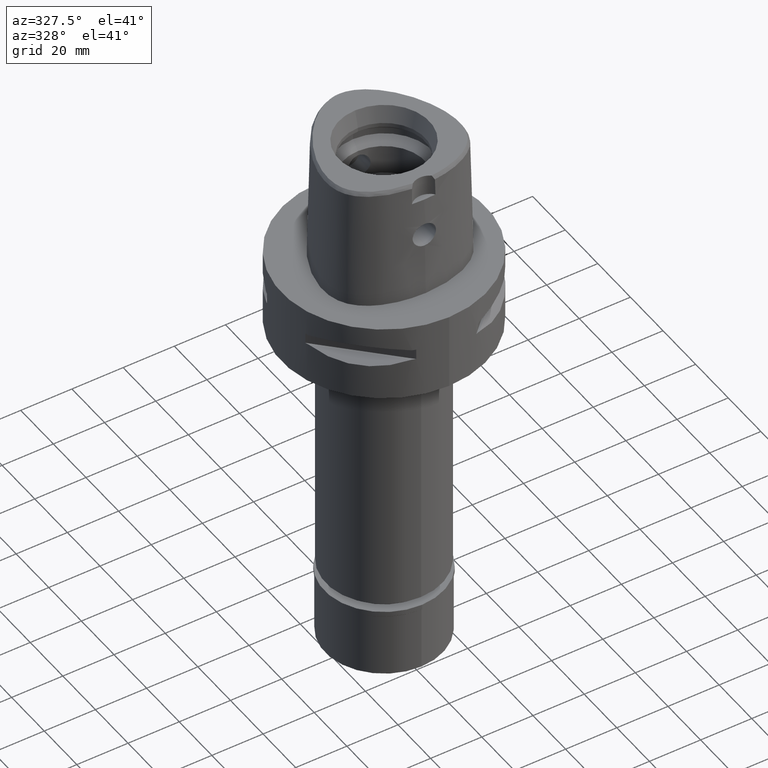
[diagram: clean part render]
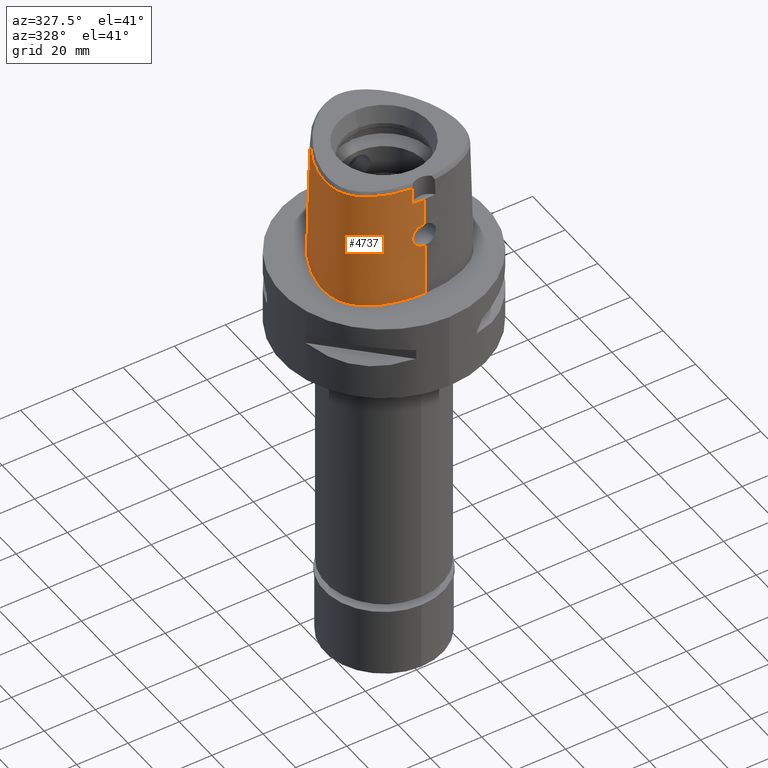
[diagram: same view with one face highlighted and labeled with its STEP entity id]
A machine part, auxiliary view. The second image highlights one B-rep face of the part: STEP entity #4737.
In plain terms, the highlighted face is a freeform B-spline surface patch.
Its self-contained STEP definition (entity closure, byte-faithful):
#7 = DIRECTION ( 'NONE',  ( -5.053220550043809941E-13, -0.02499051295420905497, -0.9996876883618630583 ) ) ;
#8 = CARTESIAN_POINT ( 'NONE',  ( 0.5689259951226000034, -25.59577895909999867, -0.9304144766363000585 ) ) ;
#18 = CARTESIAN_POINT ( 'NONE',  ( -0.2769662722958331491, -24.83629963747999980, 29.55000000000000071 ) ) ;
#28 = CARTESIAN_POINT ( 'NONE',  ( -1.049694959834582830, 29.57500002245776471, -8.981630610148221006E-07 ) ) ;
#53 = B_SPLINE_CURVE_WITH_KNOTS ( 'NONE', 3,
 ( #510, #28, #3998, #2778, #411, #1993, #4355, #4821, #3214, #3950, #4427, #4337, #4846, #1628, #833, #2851, #2827, #3168, #3972, #435, #2044, #2021, #4020, #457, #4380 ),
 .UNSPECIFIED., .F., .F.,
 ( 4, 1, 1, 1, 1, 1, 1, 1, 1, 1, 1, 1, 1, 1, 1, 1, 1, 1, 1, 1, 1, 1, 4 ),
 ( 0.0000000000000000000, 0.04166666666704999661, 0.08333333333368000972, 0.1250000000003000100, 0.1666666666670000019, 0.2500000000002000067, 0.3333333333335000148, 0.4166666666668000230, 0.4583333333333999837, 0.5000000000001000311, 0.5416666666667000474, 0.5833333333333000637, 0.6250000000000000000, 0.6458333333333000637, 0.6666666666667000474, 0.6874999999999000799, 0.7083333333332000326, 0.7499999999999000799, 0.7916666666666000163, 0.8333333333331000015, 0.8749999999998000488, 0.9166666666664999852, 1.000000000000000000 ),
 .UNSPECIFIED. ) ;
#95 = CARTESIAN_POINT ( 'NONE',  ( -4.201380620709784353, -24.72153596869750913, 26.74670933509911563 ) ) ;
#124 = CARTESIAN_POINT ( 'NONE',  ( -3.900686180413630577, -24.73222278675433472, 27.34720371155059837 ) ) ;
#145 = CARTESIAN_POINT ( 'NONE',  ( -4.219931661120497779, -24.80642684597901848, 23.29859562715307675 ) ) ;
#165 = FACE_OUTER_BOUND ( 'NONE', #1194, .T. ) ;
#169 = CARTESIAN_POINT ( 'NONE',  ( -4.549921019084919749, -24.74001865967037972, 24.72536366591872437 ) ) ;
#192 = CARTESIAN_POINT ( 'NONE',  ( -27.70696775902000297, -8.754869100832999962, -0.9304144766363000585 ) ) ;
#198 = CARTESIAN_POINT ( 'NONE',  ( -1.703896036126127278, -24.81434470502067668, 29.21892603896870710 ) ) ;
#214 = CARTESIAN_POINT ( 'NONE',  ( -27.12297207980999758, -11.41745865540999993, -0.9304144766363000585 ) ) ;
#241 = CARTESIAN_POINT ( 'NONE',  ( 0.5902542487144000205, 29.18556700418999839, 15.19676978505999898 ) ) ;
#264 = CARTESIAN_POINT ( 'NONE',  ( -5.572548441001297981, -24.09475885057384303, 46.52070903171008354 ) ) ;
#268 = CARTESIAN_POINT ( 'NONE',  ( -24.10679984010999632, 6.379205541131000246, 47.45113830844999825 ) ) ;
#273 = CARTESIAN_POINT ( 'NONE',  ( -2.224291573382352727, -24.99814500580220766, 21.02832322412745825 ) ) ;
#292 = B_SPLINE_CURVE_WITH_KNOTS ( 'NONE', 3,
 ( #4287, #2311, #313, #1881 ),
 .UNSPECIFIED., .F., .F.,
 ( 4, 4 ),
 ( 0.0000000000000000000, 1.000000000000000000 ),
 .UNSPECIFIED. ) ;
#301 = CARTESIAN_POINT ( 'NONE',  ( -3.702709904148339781, -24.87336589807970100, 22.35148037005131272 ) ) ;
#313 = CARTESIAN_POINT ( 'NONE',  ( -3.083107012282212178, -24.50056602082081270, 40.00000010711481480 ) ) ;
#324 = CARTESIAN_POINT ( 'NONE',  ( -3.790579096131103665, -24.86307050843588229, 22.48323682071577423 ) ) ;
#374 = CARTESIAN_POINT ( 'NONE',  ( -18.17462485540999850, -20.76404278096999789, 31.32395404676000084 ) ) ;
#397 = CARTESIAN_POINT ( 'NONE',  ( -11.74634101483999871, -24.15815461093999872, -0.9304144766363000585 ) ) ;
#411 = CARTESIAN_POINT ( 'NONE',  ( -9.304563418361519567, 26.79191408171391231, -8.981630610148221006E-07 ) ) ;
#435 = CARTESIAN_POINT ( 'NONE',  ( -18.55019650159792377, -21.45394533227971579, -8.981630610148221006E-07 ) ) ;
#440 = VERTEX_POINT ( 'NONE', #1156 ) ;
#457 = CARTESIAN_POINT ( 'NONE',  ( -2.676740186769421825, -25.57500002245401660, -8.981630610148221006E-07 ) ) ;
#478 = CARTESIAN_POINT ( 'NONE',  ( -3.211065830876445037, -24.76179211193618457, 28.22361125334742482 ) ) ;
#488 = ORIENTED_EDGE ( 'NONE', *, *, #2544, .F. ) ;
#507 = CARTESIAN_POINT ( 'NONE',  ( -4.098396066246055902, -24.72479182399337461, 26.97739233805751269 ) ) ;
#510 = CARTESIAN_POINT ( 'NONE',  ( 3.071360863650999976E-11, 29.57499999998999840, 4.999704354228999432E-14 ) ) ;
#532 = CARTESIAN_POINT ( 'NONE',  ( -4.547910621292748701, -24.72974527037225911, 25.14250056299538727 ) ) ;
#537 = VERTEX_POINT ( 'NONE', #594 ) ;
#554 = CARTESIAN_POINT ( 'NONE',  ( -3.994669282579361269, -24.83794919743792562, 22.82040209576821610 ) ) ;
#578 = CARTESIAN_POINT ( 'NONE',  ( -22.00846693109999919, 12.70659196839000060, 15.19676978505999898 ) ) ;
#585 = CARTESIAN_POINT ( 'NONE',  ( -4.183313010706772417, -24.72206008749300921, 26.78965014441195791 ) ) ;
#594 = CARTESIAN_POINT ( 'NONE',  ( -4.472216406693000579, -24.20008985674000357, 46.52070903171000538 ) ) ;
#604 = CARTESIAN_POINT ( 'NONE',  ( -26.52477687770683090, -8.605158286269631418, 46.52070903171008354 ) ) ;
#607 = CARTESIAN_POINT ( 'NONE',  ( -26.90338677860000161, -8.653104855271999796, 31.32395404676000084 ) ) ;
#633 = CARTESIAN_POINT ( 'NONE',  ( -12.44957317646415440, 23.16260189109142331, 46.52070903171008354 ) ) ;
#635 = CARTESIAN_POINT ( 'NONE',  ( -26.34453533486999888, -11.19579297653000083, 31.32395404676000084 ) ) ;
#660 = CARTESIAN_POINT ( 'NONE',  ( -17.45811262699000110, 19.27961880698999764, 15.19676978505999898 ) ) ;
#677 = EDGE_CURVE ( 'NONE', #1505, #4433, #53, .T. ) ;
#693 = CARTESIAN_POINT ( 'NONE',  ( -26.79474625773000085, 1.906447387331000165, -0.9304144766363000585 ) ) ;
#698 = CARTESIAN_POINT ( 'NONE',  ( -1.843442154715413395, -25.01881181296652912, 20.83994273181284385 ) ) ;
#719 = CARTESIAN_POINT ( 'NONE',  ( -24.14246365678000217, -15.65707285802999849, 31.32395404676000084 ) ) ;
#723 = CARTESIAN_POINT ( 'NONE',  ( -1.467048192861000018E-12, -25.06378435148999984, 20.44999999999999929 ) ) ;
#769 = CARTESIAN_POINT ( 'NONE',  ( -11.64093424006999911, -23.76831843806999700, 15.19676978505999898 ) ) ;
#796 = CARTESIAN_POINT ( 'NONE',  ( -17.98126124112999946, -20.40884543800000017, 47.45113830844999825 ) ) ;
#801 = CARTESIAN_POINT ( 'NONE',  ( -4.849489465481114265E-09, -24.66214466420069229, 36.51666702990934255 ) ) ;
#827 = CARTESIAN_POINT ( 'NONE',  ( -1.611811031578107345, -24.81663505490543642, 29.25526689574285299 ) ) ;
#833 = CARTESIAN_POINT ( 'NONE',  ( -26.34912739279852190, -13.39455079027902329, -8.981630610148221006E-07 ) ) ;
#907 = CARTESIAN_POINT ( 'NONE',  ( -4.068466760403409488, -24.72584630863870103, 27.03834969239067121 ) ) ;
#931 = CARTESIAN_POINT ( 'NONE',  ( -1.180411260321999901E-11, -25.57499999999999929, 5.639932965095998436E-14 ) ) ;
#936 = CARTESIAN_POINT ( 'NONE',  ( -4.441732659387183979, -24.76864030037668840, 24.00221451032574294 ) ) ;
#966 = CARTESIAN_POINT ( 'NONE',  ( -3.125212091967373595, -24.76551320166747416, 28.30726214217308723 ) ) ;
#985 = CARTESIAN_POINT ( 'NONE',  ( -21.65785138451999714, 12.50416150627000000, 31.32395404676000084 ) ) ;
#990 = CARTESIAN_POINT ( 'NONE',  ( -2.404910036721157773, -24.79321437770949998, 28.86288751850016610 ) ) ;
#1009 = CARTESIAN_POINT ( 'NONE',  ( -25.97777222568481648, -11.09135444107796786, 46.52070903171008354 ) ) ;
#1011 = CARTESIAN_POINT ( 'NONE',  ( 0.5552374614105000106, 28.37983258526000085, 47.45113830844999825 ) ) ;
#1016 = CARTESIAN_POINT ( 'NONE',  ( -2.249867388139984214, -24.79844751147312465, 28.95562542824798058 ) ) ;
#1037 = CARTESIAN_POINT ( 'NONE',  ( -8.894849814684999245, 26.12169678474999657, 31.32395404676000084 ) ) ;
#1060 = B_SPLINE_CURVE_WITH_KNOTS ( 'NONE', 3,
 ( #2445, #801, #4422, #3536 ),
 .UNSPECIFIED., .F., .F.,
 ( 4, 4 ),
 ( 0.0000000000000000000, 1.000000000000000000 ),
 .UNSPECIFIED. ) ;
#1064 = CARTESIAN_POINT ( 'NONE',  ( -26.76156705728999796, -1.884109319980999953, 31.32395404676000084 ) ) ;
#1071 = CARTESIAN_POINT ( 'NONE',  ( -3.472208232089663671, -24.89783358727838447, 22.05860165752378776 ) ) ;
#1091 = CARTESIAN_POINT ( 'NONE',  ( -17.99241701171357022, -20.42933791837082325, 46.52070903171008354 ) ) ;
#1093 = CARTESIAN_POINT ( 'NONE',  ( -3.154109046503999814, 29.36302093374000322, -0.9304144766363000585 ) ) ;
#1118 = CARTESIAN_POINT ( 'NONE',  ( -14.87405714085419639, -21.87944447072877097, 46.52070903171008354 ) ) ;
#1149 = CARTESIAN_POINT ( 'NONE',  ( -2.354156828678999780, -24.81494221494999763, 31.32395404676000084 ) ) ;
#1156 = CARTESIAN_POINT ( 'NONE',  ( -1.344666072917000002E-11, 28.41206021534999593, 46.52071719450999154 ) ) ;
#1174 = CARTESIAN_POINT ( 'NONE',  ( -6.584202217011000613, -24.46732447774000008, 31.32395404676000084 ) ) ;
#1186 = EDGE_CURVE ( 'NONE', #5031, #1966, #1060, .T. ) ;
#1194 = EDGE_LOOP ( 'NONE', ( #2515, #1350, #2958, #3479, #488, #3544, #3846, #4684 ) ) ;
#1195 = CARTESIAN_POINT ( 'NONE',  ( -1.344666072917000002E-11, 28.41206021534999593, 46.52071719450999154 ) ) ;
#1201 = CARTESIAN_POINT ( 'NONE',  ( -23.15870205113999702, -17.49879694221999671, 15.19676978505999898 ) ) ;
#1312 = CARTESIAN_POINT ( 'NONE',  ( -1.722296434336842763, -24.81387508079694015, 29.21144792399064016 ) ) ;
#1335 = CARTESIAN_POINT ( 'NONE',  ( -4.494536868534346752, -24.72037511897826789, 25.72370608056143837 ) ) ;
#1350 = ORIENTED_EDGE ( 'NONE', *, *, #1777, .F. ) ;
#1363 = CARTESIAN_POINT ( 'NONE',  ( -4.156037652092123835, -24.81598364112163679, 23.14362525770374646 ) ) ;
#1388 = CARTESIAN_POINT ( 'NONE',  ( -9.105791465975000776, 26.46675914556999842, 15.19676978505999898 ) ) ;
#1392 = CARTESIAN_POINT ( 'NONE',  ( -4.406213798168644225, -24.77565163120073777, 23.85472934568140957 ) ) ;
#1410 = CARTESIAN_POINT ( 'NONE',  ( -12.43420517454000063, 23.14497629918999877, 47.45113830844999825 ) ) ;
#1416 = CARTESIAN_POINT ( 'NONE',  ( -3.808704889424079809, -24.86093372512832289, 22.51074749453151114 ) ) ;
#1433 = CARTESIAN_POINT ( 'NONE',  ( -4.516620139914707011, -24.24973684088320525, 44.34713935447333455 ) ) ;
#1435 = CARTESIAN_POINT ( 'NONE',  ( -0.7475778414347999945, 29.63225228728000005, -0.9304144766363000585 ) ) ;
#1465 = CARTESIAN_POINT ( 'NONE',  ( -6.114741924721999844, 27.99897533564999819, 15.19676978505999898 ) ) ;
#1485 = CARTESIAN_POINT ( 'NONE',  ( -5.810185802762860341, 27.27372406630062329, 46.52070903171008354 ) ) ;
#1488 = CARTESIAN_POINT ( 'NONE',  ( 0.8322161961028999855, 28.36171632456999703, 47.45113830844999825 ) ) ;
#1505 = VERTEX_POINT ( 'NONE', #3743 ) ;
#1511 = CARTESIAN_POINT ( 'NONE',  ( -8.696078067630889308, 25.79654218449118730, 46.52070903171008354 ) ) ;
#1514 = CARTESIAN_POINT ( 'NONE',  ( -22.57751559032999822, -16.93548378770000085, 47.45113830844999825 ) ) ;
#1544 = CARTESIAN_POINT ( 'NONE',  ( -22.86810882073999807, -17.21714036496000233, 31.32395404676000084 ) ) ;
#1568 = CARTESIAN_POINT ( 'NONE',  ( 0.8532670503982000554, -25.59082387529999636, -0.9304144766363000585 ) ) ;
#1611 = CARTESIAN_POINT ( 'NONE',  ( 0.5642418784031000278, -25.19264542664000217, 15.19676978505999898 ) ) ;
#1623 = CARTESIAN_POINT ( 'NONE',  ( -1.003044292487226929, -24.82866638025620887, 29.44055839642895478 ) ) ;
#1628 = CARTESIAN_POINT ( 'NONE',  ( -27.10051719538249770, -11.41106445930717328, -8.981630610148221006E-07 ) ) ;
#1696 = CARTESIAN_POINT ( 'NONE',  ( -3.172181247292561235, -24.76348918694394285, 28.26195868750398077 ) ) ;
#1721 = CARTESIAN_POINT ( 'NONE',  ( -2.352923008986411268, -24.79499099983797450, 28.89459205334612335 ) ) ;
#1731 = B_SPLINE_CURVE_WITH_KNOTS ( 'NONE', 3,
 ( #2370, #18, #4738, #1623, #3162, #2774, #4349, #827, #2113, #198, #1312, #4899, #4530, #2848, #3331, #1016, #1721, #990, #2896, #3260, #2572, #2477, #3236, #4818, #4040, #2547, #966, #1696, #2167, #2063, #478, #3689, #4424, #124, #3607, #907, #507, #3640, #4871, #585, #2526, #4843, #95, #3308, #2088, #1335, #2872, #4119, #3719, #532, #4504, #3284, #169, #4455, #936, #1392, #2505, #4067, #4486, #3665, #145, #1770, #1746, #1363, #4088, #554, #1797, #2139, #2921, #4922, #1416, #2949, #324, #301, #2193, #1071, #3802, #3437, #2273, #3744, #1818, #1868, #5025, #1918, #4638, #273, #2623, #5050, #2649, #698, #3772, #4171, #3408, #3353, #3465, #4191, #723 ),
 .UNSPECIFIED., .F., .F.,
 ( 4, 2, 2, 1, 1, 1, 2, 2, 2, 2, 1, 1, 2, 2, 2, 1, 1, 1, 2, 2, 2, 2, 2, 1, 1, 2, 2, 2, 2, 1, 2, 2, 2, 2, 1, 1, 1, 2, 2, 2, 2, 1, 1, 2, 2, 2, 1, 1, 1, 2, 2, 2, 2, 2, 1, 1, 2, 2, 4 ),
 ( 0.0000000000000000000, 0.06249999999998905043, 0.09374999999998356870, 0.1093749999999808348, 0.1171874999999794748, 0.1210937499999787531, 0.1230468749999785588, 0.1249999999999783507, 0.1562499999999781286, 0.1718749999999779621, 0.1796874999999778511, 0.1835937499999777678, 0.1855468749999779066, 0.1874999999999780176, 0.2187499999999800437, 0.2343749999999812650, 0.2421874999999818201, 0.2460937499999820977, 0.2480468749999824585, 0.2499999999999828471, 0.3125000000000057732, 0.3437500000000175415, 0.3593750000000238143, 0.3671875000000265343, 0.3710937500000279221, 0.3730468750000282552, 0.3750000000000285327, 0.4375000000000252576, 0.4687500000000232592, 0.4843750000000222045, 0.4921875000000220934, 0.5000000000000219824, 0.5625000000000232037, 0.5937500000000235367, 0.6093750000000233147, 0.6171875000000233147, 0.6210937500000229816, 0.6230468750000228706, 0.6250000000000227596, 0.6562500000000179856, 0.6718750000000157652, 0.6796875000000145439, 0.6835937500000139888, 0.6855468750000134337, 0.6875000000000128786, 0.7187500000000042188, 0.7343749999999995559, 0.7421874999999972244, 0.7460937499999960032, 0.7480468749999956701, 0.7499999999999952260, 0.8124999999999943379, 0.8437499999999938938, 0.8593749999999935607, 0.8671874999999934497, 0.8710937499999934497, 0.8730468749999934497, 0.8749999999999934497, 1.000000000000000000 ),
 .UNSPECIFIED. ) ;
#1746 = CARTESIAN_POINT ( 'NONE',  ( -4.207829589086045985, -24.80824686016802261, 23.26889234074807078 ) ) ;
#1766 = CARTESIAN_POINT ( 'NONE',  ( -5.801139433146000002, 27.25218159654000161, 47.45113830844999825 ) ) ;
#1770 = CARTESIAN_POINT ( 'NONE',  ( -4.212409792926581353, -24.80756021599265537, 23.28005703556016925 ) ) ;
#1773 = VECTOR ( 'NONE', #7, 1000.000000000000114 ) ;
#1777 = EDGE_CURVE ( 'NONE', #1966, #2282, #1731, .T. ) ;
#1791 = CARTESIAN_POINT ( 'NONE',  ( -3.067023398624999952, 28.96669974886000176, 15.19676978505999898 ) ) ;
#1797 = CARTESIAN_POINT ( 'NONE',  ( -3.957281473798043514, -24.84276546235786043, 22.75305380327923999 ) ) ;
#1811 = CARTESIAN_POINT ( 'NONE',  ( -16.85032607016413309, 18.77963051275659012, 46.52070903171008354 ) ) ;
#1813 = CARTESIAN_POINT ( 'NONE',  ( -8.683908163395999580, 25.77663442393000182, 47.45113830844999825 ) ) ;
#1818 = CARTESIAN_POINT ( 'NONE',  ( -3.232655617673357185, -24.92130312931369218, 21.79804365392788768 ) ) ;
#1837 = CARTESIAN_POINT ( 'NONE',  ( -22.59428085107287743, -16.95173346409835347, 46.52070903171008354 ) ) ;
#1840 = CARTESIAN_POINT ( 'NONE',  ( -0.7257524945023999807, 29.22811259648999993, 15.19676978505999898 ) ) ;
#1864 = CARTESIAN_POINT ( 'NONE',  ( -9.316733117264998754, 26.81182150639000028, -0.9304144766363000585 ) ) ;
#1868 = CARTESIAN_POINT ( 'NONE',  ( -3.227056402119971690, -24.92183285210593269, 21.79239637393090590 ) ) ;
#1881 = CARTESIAN_POINT ( 'NONE',  ( -4.602965878455999693, -24.35127227233000013, 40.00000000000000000 ) ) ;
#1886 = CARTESIAN_POINT ( 'NONE',  ( -21.32746397970838004, 12.31340991043913924, 46.52070903171008354 ) ) ;
#1888 = CARTESIAN_POINT ( 'NONE',  ( 0.8321919557660999445, -24.38153432936999820, 47.45113830844999825 ) ) ;
#1918 = CARTESIAN_POINT ( 'NONE',  ( -2.724936705858741259, -24.96514019468460788, 21.34399272640271050 ) ) ;
#1957 = CARTESIAN_POINT ( 'NONE',  ( -15.30623779600000134, -22.98697010186999989, -0.9304144766363000585 ) ) ;
#1966 = VERTEX_POINT ( 'NONE', #4583 ) ;
#1980 = CARTESIAN_POINT ( 'NONE',  ( -21.43542293247999808, -19.61750339130999876, -0.9304144766363000585 ) ) ;
#1993 = CARTESIAN_POINT ( 'NONE',  ( -13.21796082028640029, 24.04386720451877579, -8.981630610148221006E-07 ) ) ;
#2021 = CARTESIAN_POINT ( 'NONE',  ( -11.74025986062749283, -24.13566408421613829, -8.981630610148221006E-07 ) ) ;
#2044 = CARTESIAN_POINT ( 'NONE',  ( -15.29776367104423684, -22.96525392721420289, -8.981630610148221006E-07 ) ) ;
#2063 = CARTESIAN_POINT ( 'NONE',  ( -3.205390121192459141, -24.76204090357540721, 28.22925085367090858 ) ) ;
#2088 = CARTESIAN_POINT ( 'NONE',  ( -4.409270466782027498, -24.71744676443915267, 26.16158622813302514 ) ) ;
#2113 = CARTESIAN_POINT ( 'NONE',  ( -1.676286854296592299, -24.81504355059169242, 29.23004141242347842 ) ) ;
#2139 = CARTESIAN_POINT ( 'NONE',  ( -3.896481458106559881, -24.85034248778501365, 22.65020889969181539 ) ) ;
#2161 = CARTESIAN_POINT ( 'NONE',  ( -26.36214112472999815, -1.945111148090999942, 47.45113830844999825 ) ) ;
#2167 = CARTESIAN_POINT ( 'NONE',  ( -3.192130741525157855, -24.76262039752747057, 28.24235843699960569 ) ) ;
#2184 = CARTESIAN_POINT ( 'NONE',  ( -26.68853359099298928, -5.367220537273253989, 46.52070903171008354 ) ) ;
#2187 = CARTESIAN_POINT ( 'NONE',  ( -26.50159628839000092, -8.602222732491000556, 47.45113830844999825 ) ) ;
#2193 = CARTESIAN_POINT ( 'NONE',  ( -3.613911253851755934, -24.88311648731248482, 22.23154152753993529 ) ) ;
#2213 = CARTESIAN_POINT ( 'NONE',  ( -25.95531696239000041, -11.08496013709000039, 47.45113830844999825 ) ) ;
#2237 = CARTESIAN_POINT ( 'NONE',  ( -0.7039271475700998870, 28.82397290569999981, 31.32395404676000084 ) ) ;
#2269 = CARTESIAN_POINT ( 'NONE',  ( -24.60869384369000201, -14.20783601436000154, 47.45113830844999825 ) ) ;
#2273 = CARTESIAN_POINT ( 'NONE',  ( -3.265305598819546518, -24.91820214815111711, 21.83126415608265702 ) ) ;
#2282 = VERTEX_POINT ( 'NONE', #4397 ) ;
#2292 = CARTESIAN_POINT ( 'NONE',  ( 0.8462420188541999178, -25.18772735998999934, 15.19676978505999898 ) ) ;
#2311 = CARTESIAN_POINT ( 'NONE',  ( -1.541632516112587448, -24.57506718850393312, 40.00000010711481480 ) ) ;
#2312 = CARTESIAN_POINT ( 'NONE',  ( -1.451045074373000022E-08, -24.57504746727000011, 40.00000005214000254 ) ) ;
#2318 = CARTESIAN_POINT ( 'NONE',  ( -25.65830880164000050, -14.81383149360000040, -0.9304144766363000585 ) ) ;
#2363 = CARTESIAN_POINT ( 'NONE',  ( -2.373852718363999692, -25.21827345166000001, 15.19676978505999898 ) ) ;
#2370 = CARTESIAN_POINT ( 'NONE',  ( 1.372734075386999954E-14, -24.83629963747999980, 29.55000000000000071 ) ) ;
#2445 = CARTESIAN_POINT ( 'NONE',  ( -1.451045074373000022E-08, -24.57504746727000011, 40.00000005214000254 ) ) ;
#2477 = CARTESIAN_POINT ( 'NONE',  ( -2.520279592226922993, -24.78912363236071315, 28.78824203054359288 ) ) ;
#2480 = EDGE_CURVE ( 'NONE', #537, #440, #4164, .T. ) ;
#2505 = CARTESIAN_POINT ( 'NONE',  ( -4.340344041599830227, -24.78724112967246995, 23.63256450709636525 ) ) ;
#2515 = ORIENTED_EDGE ( 'NONE', *, *, #2785, .F. ) ;
#2526 = CARTESIAN_POINT ( 'NONE',  ( -4.192714366875117449, -24.72178541175449595, 26.76740225216487090 ) ) ;
#2541 = CARTESIAN_POINT ( 'NONE',  ( -24.48145224734999914, 6.531540504276000192, 31.32395404676000084 ) ) ;
#2544 = EDGE_CURVE ( 'NONE', #537, #4312, #4778, .T. ) ;
#2547 = CARTESIAN_POINT ( 'NONE',  ( -3.029613744919227081, -24.76954858878827892, 28.39612668127736939 ) ) ;
#2567 = CARTESIAN_POINT ( 'NONE',  ( -13.23332856291999882, 24.06149249903999632, -0.9304144766363000585 ) ) ;
#2572 = CARTESIAN_POINT ( 'NONE',  ( -2.510338385227682156, -24.78948177504959816, 28.79484028636983695 ) ) ;
#2591 = CARTESIAN_POINT ( 'NONE',  ( -7.937300651753208314, -23.78071178103738248, 46.52070903171008354 ) ) ;
#2593 = CARTESIAN_POINT ( 'NONE',  ( -17.14519266769999817, 19.02219896951999800, 31.32395404676000084 ) ) ;
#2619 = CARTESIAN_POINT ( 'NONE',  ( 0.9115101685679000143, 29.56851175998000159, -0.9304144766363000585 ) ) ;
#2623 = CARTESIAN_POINT ( 'NONE',  ( -2.039991806420665021, -25.00858519317946360, 20.93235562228053226 ) ) ;
#2643 = CARTESIAN_POINT ( 'NONE',  ( -24.12841474588899615, 6.387994236496619571, 46.52070903171008354 ) ) ;
#2645 = CARTESIAN_POINT ( 'NONE',  ( -6.271543170511000298, 28.37237220520999870, -0.9304144766363000585 ) ) ;
#2649 = CARTESIAN_POINT ( 'NONE',  ( -1.888484788632717848, -25.01654759054933308, 20.86028587657998656 ) ) ;
#2692 = CARTESIAN_POINT ( 'NONE',  ( -25.30843714899000219, -14.61183300052000078, 15.19676978505999898 ) ) ;
#2719 = CARTESIAN_POINT ( 'NONE',  ( 0.5595577616836999724, -24.78951189418000212, 31.32395404676000084 ) ) ;
#2744 = CARTESIAN_POINT ( 'NONE',  ( -15.15935282164000064, -22.61055604447000178, 15.19676978505999898 ) ) ;
#2774 = CARTESIAN_POINT ( 'NONE',  ( -1.371865276106448261, -24.82198728018540734, 29.33894196721532310 ) ) ;
#2778 = CARTESIAN_POINT ( 'NONE',  ( -6.262496953525058530, 28.35083009891540939, -8.981630610148221006E-07 ) ) ;
#2785 = EDGE_CURVE ( 'NONE', #2282, #4433, #3528, .T. ) ;
#2827 = CARTESIAN_POINT ( 'NONE',  ( -24.77458495306543540, -16.12173829457910301, -8.981630610148221006E-07 ) ) ;
#2848 = CARTESIAN_POINT ( 'NONE',  ( -1.984502176480205771, -24.80676203802992319, 29.09712838306113269 ) ) ;
#2851 = CARTESIAN_POINT ( 'NONE',  ( -25.63812391808772162, -14.80217774563364230, -8.981630610148221006E-07 ) ) ;
#2872 = CARTESIAN_POINT ( 'NONE',  ( -4.515545264919025747, -24.72200876241212697, 25.57765437787082163 ) ) ;
#2896 = CARTESIAN_POINT ( 'NONE',  ( -2.466259342607413974, -24.79105701084885993, 28.82372012011356333 ) ) ;
#2917 = CARTESIAN_POINT ( 'NONE',  ( 0.8586475202579000321, 28.76398146971000003, 31.32395404676000084 ) ) ;
#2921 = CARTESIAN_POINT ( 'NONE',  ( -3.864901861996224319, -24.85421915751038924, 22.59833191710568556 ) ) ;
#2941 = CARTESIAN_POINT ( 'NONE',  ( -4.472216406693000579, -24.20008985674000357, 46.52070903171000538 ) ) ;
#2943 = CARTESIAN_POINT ( 'NONE',  ( -27.56041892240000024, -1.762105663762999930, -0.9304144766363000585 ) ) ;
#2949 = CARTESIAN_POINT ( 'NONE',  ( -3.797137772289172375, -24.86229941254662279, 22.49313827486260564 ) ) ;
#2958 = ORIENTED_EDGE ( 'NONE', *, *, #1186, .F. ) ;
#2967 = CARTESIAN_POINT ( 'NONE',  ( -4.602965878455999693, -24.35127227233000013, 40.00000000000000000 ) ) ;
#2969 = CARTESIAN_POINT ( 'NONE',  ( -22.35908247767000034, 12.90902243050999942, -0.9304144766363000585 ) ) ;
#2998 = CARTESIAN_POINT ( 'NONE',  ( -26.40443226401000132, 1.802817673584000246, 15.19676978505999898 ) ) ;
#3018 = CARTESIAN_POINT ( 'NONE',  ( -25.28208905154020414, -12.92658008282621473, 46.52070903171008354 ) ) ;
#3020 = CARTESIAN_POINT ( 'NONE',  ( -16.83227270842000323, 18.76477913204999837, 47.45113830844999825 ) ) ;
#3046 = CARTESIAN_POINT ( 'NONE',  ( -4.602965878455999693, -24.35127227233000013, 40.00000000000000000 ) ) ;
#3077 = CARTESIAN_POINT ( 'NONE',  ( -20.70054131283999865, -18.64994423039000182, 47.45113830844999825 ) ) ;
#3104 = CARTESIAN_POINT ( 'NONE',  ( -21.19046239260000064, -19.29498367101000156, 15.19676978505999898 ) ) ;
#3127 = CARTESIAN_POINT ( 'NONE',  ( -24.95856549634000032, -14.40983450743999938, 31.32395404676000084 ) ) ;
#3150 = VECTOR ( 'NONE', #4680, 1000.000000000000227 ) ;
#3155 = CARTESIAN_POINT ( 'NONE',  ( -24.46791223562999917, -15.89630654127000042, 15.19676978505999898 ) ) ;
#3162 = CARTESIAN_POINT ( 'NONE',  ( -1.150414049173519748, -24.82628098737378153, 29.40485804970605699 ) ) ;
#3168 = CARTESIAN_POINT ( 'NONE',  ( -23.43253030367175427, -17.76420411724730286, -8.981630610148221006E-07 ) ) ;
#3196 = EDGE_CURVE ( 'NONE', #5031, #4312, #292, .T. ) ;
#3214 = CARTESIAN_POINT ( 'NONE',  ( -25.20914252072918060, 6.827421883483855147, -8.981630610148221006E-07 ) ) ;
#3236 = CARTESIAN_POINT ( 'NONE',  ( -2.652045588673545673, -24.78435656486181671, 28.70018943685019508 ) ) ;
#3260 = CARTESIAN_POINT ( 'NONE',  ( -2.492689275653129588, -24.79011428768484748, 28.80645659143079484 ) ) ;
#3284 = CARTESIAN_POINT ( 'NONE',  ( -4.550009659928407224, -24.73228693208369933, 25.03285394944704123 ) ) ;
#3289 = EDGE_CURVE ( 'NONE', #440, #1505, #3821, .T. ) ;
#3303 = CARTESIAN_POINT ( 'NONE',  ( -21.30723583794999954, 12.30173104416000029, 47.45113830844999825 ) ) ;
#3308 = CARTESIAN_POINT ( 'NONE',  ( -4.322680882352817555, -24.71812462909636210, 26.45319451589575266 ) ) ;
#3326 = CARTESIAN_POINT ( 'NONE',  ( -25.62380427656000137, 1.595558246091000054, 47.45113830844999825 ) ) ;
#3331 = CARTESIAN_POINT ( 'NONE',  ( -2.182391158249092911, -24.80062287573412760, 28.99314679185866339 ) ) ;
#3346 = CARTESIAN_POINT ( 'NONE',  ( -25.64632274977799398, 1.601536978524745969, 46.52070903171008354 ) ) ;
#3348 = CARTESIAN_POINT ( 'NONE',  ( -27.87808443100000133, -5.337383714068000273, -0.9304144766363000585 ) ) ;
#3353 = CARTESIAN_POINT ( 'NONE',  ( -1.748501813549813599, -25.02335543620022307, 20.79936485166495430 ) ) ;
#3375 = CARTESIAN_POINT ( 'NONE',  ( -24.85610465458000107, 6.683875467420999250, 15.19676978505999898 ) ) ;
#3400 = CARTESIAN_POINT ( 'NONE',  ( -4.472216406693000579, -24.20008985674000357, 46.52070903171000538 ) ) ;
#3403 = CARTESIAN_POINT ( 'NONE',  ( -27.47379251613999784, -5.347524336881999574, 15.19676978505999898 ) ) ;
#3408 = CARTESIAN_POINT ( 'NONE',  ( -1.754298049354317213, -25.02308377135080875, 20.80178576367013932 ) ) ;
#3437 = CARTESIAN_POINT ( 'NONE',  ( -3.310528231614959349, -24.91386642802240203, 21.87824841565020151 ) ) ;
#3460 = CARTESIAN_POINT ( 'NONE',  ( -25.63065467438000056, -13.07945041072999892, 31.32395404676000084 ) ) ;
#3465 = CARTESIAN_POINT ( 'NONE',  ( -1.165430911961757188, -25.05044697737379167, 20.55812161079594347 ) ) ;
#3479 = ORIENTED_EDGE ( 'NONE', *, *, #3196, .T. ) ;
#3488 = CARTESIAN_POINT ( 'NONE',  ( -18.36798846969000110, -21.11924012392999828, 15.19676978505999898 ) ) ;
#3506 = CARTESIAN_POINT ( 'NONE',  ( -14.86558287291999925, -21.85772792966999845, 47.45113830844999825 ) ) ;
#3528 = LINE ( 'NONE', #3881, #1773 ) ;
#3529 = CARTESIAN_POINT ( 'NONE',  ( -18.56135208395999925, -21.47443746689999955, -0.9304144766363000585 ) ) ;
#3536 = CARTESIAN_POINT ( 'NONE',  ( 1.372734075386999954E-14, -24.83629963747999980, 29.55000000000000071 ) ) ;
#3544 = ORIENTED_EDGE ( 'NONE', *, *, #2480, .T. ) ;
#3607 = CARTESIAN_POINT ( 'NONE',  ( -3.972636365752692633, -24.72937778087100469, 27.22257177643495751 ) ) ;
#3640 = CARTESIAN_POINT ( 'NONE',  ( -4.140463633215315298, -24.72339410617355782, 26.88684090363467050 ) ) ;
#3665 = CARTESIAN_POINT ( 'NONE',  ( -4.231109674115377750, -24.80473516988229221, 23.32640847146415197 ) ) ;
#3685 = CARTESIAN_POINT ( 'NONE',  ( -27.30517726880999874, -8.703986978052000723, 15.19676978505999898 ) ) ;
#3689 = CARTESIAN_POINT ( 'NONE',  ( -3.459328791574007411, -24.75086403572711191, 27.97515479134742833 ) ) ;
#3712 = CARTESIAN_POINT ( 'NONE',  ( -26.66520868642000153, -5.367805582511000040, 47.45113830844999825 ) ) ;
#3719 = CARTESIAN_POINT ( 'NONE',  ( -4.544092989177815234, -24.72741046393047526, 25.25074796832975466 ) ) ;
#3739 = CARTESIAN_POINT ( 'NONE',  ( -0.6821018006376999843, 28.41983321492000059, 47.45113830844999825 ) ) ;
#3743 = CARTESIAN_POINT ( 'NONE',  ( 3.071360863650999976E-11, 29.57499999998999840, 4.999704354228999432E-14 ) ) ;
#3744 = CARTESIAN_POINT ( 'NONE',  ( -3.245740051672676429, -24.92006245179830159, 21.81130774429477981 ) ) ;
#3767 = CARTESIAN_POINT ( 'NONE',  ( -26.37046814540000028, -13.40391019819000107, -0.9304144766363000585 ) ) ;
#3772 = CARTESIAN_POINT ( 'NONE',  ( -1.791332517422943749, -25.02133236723710041, 20.81740716610678987 ) ) ;
#3798 = CARTESIAN_POINT ( 'NONE',  ( -25.23075706182000033, 6.836210430566000085, -0.9304144766363000585 ) ) ;
#3802 = CARTESIAN_POINT ( 'NONE',  ( -3.399231802462692631, -24.90521494129050595, 21.97387284700376142 ) ) ;
#3821 = LINE ( 'NONE', #1195, #3150 ) ;
#3827 = CARTESIAN_POINT ( 'NONE',  ( -26.38518529508934662, -1.941591755871800995, 46.52070903171008354 ) ) ;
#3846 = ORIENTED_EDGE ( 'NONE', *, *, #3289, .T. ) ;
#3881 = CARTESIAN_POINT ( 'NONE',  ( -1.467048192861000018E-12, -25.06378435148999984, 20.44999999999999929 ) ) ;
#3882 = CARTESIAN_POINT ( 'NONE',  ( -6.528779357264999916, -24.06669574351000307, 47.45113830844999825 ) ) ;
#3912 = CARTESIAN_POINT ( 'NONE',  ( -20.94550185271999965, -18.97246395069999991, 31.32395404676000084 ) ) ;
#3938 = CARTESIAN_POINT ( 'NONE',  ( -15.01246784727999994, -22.23414198707000011, 31.32395404676000084 ) ) ;
#3950 = CARTESIAN_POINT ( 'NONE',  ( -26.77222816444523446, 1.900468755770840401, -8.981630610148221006E-07 ) ) ;
#3972 = CARTESIAN_POINT ( 'NONE',  ( -21.42129060728322543, -19.59889650233153446, -8.981630610148221006E-07 ) ) ;
#3998 = CARTESIAN_POINT ( 'NONE',  ( -3.149084879360997125, 29.34015627206903787, -8.981630610148221006E-07 ) ) ;
#4013 = B_SPLINE_SURFACE_WITH_KNOTS ( 'NONE', 3, 3, ( 
 ( #2619, #4916, #2917, #1488 ),
 ( #4554, #241, #4523, #1011 ),
 ( #1435, #1840, #2237, #3739 ),
 ( #1093, #1791, #4894, #4499 ),
 ( #2645, #1465, #4992, #1766 ),
 ( #1864, #1388, #1037, #1813 ),
 ( #2567, #4187, #4138, #1410 ),
 ( #4576, #660, #2593, #3020 ),
 ( #2969, #578, #985, #3303 ),
 ( #3798, #3375, #2541, #268 ),
 ( #693, #2998, #4112, #3326 ),
 ( #2943, #4600, #1064, #2161 ),
 ( #3348, #3403, #4216, #3712 ),
 ( #192, #3685, #607, #2187 ),
 ( #214, #4166, #635, #2213 ),
 ( #3767, #5046, #3460, #4343 ),
 ( #2318, #2692, #3127, #2269 ),
 ( #4245, #3155, #719, #4292 ),
 ( #4319, #1201, #1544, #1514 ),
 ( #1980, #3104, #3912, #3077 ),
 ( #3529, #3488, #374, #796 ),
 ( #1957, #2744, #3938, #3506 ),
 ( #397, #769, #5071, #5093 ),
 ( #4686, #4707, #1174, #3882 ),
 ( #4663, #2363, #1149, #4270 ),
 ( #8, #1611, #2719, #4730 ),
 ( #1568, #2292, #5020, #1888 ) ),
 .UNSPECIFIED., .F., .F., .F.,
 ( 4, 1, 1, 1, 1, 1, 1, 1, 1, 1, 1, 1, 1, 1, 1, 1, 1, 1, 1, 1, 1, 1, 1, 1, 4 ),
 ( 4, 4 ),
 ( -0.01204223939038000062, 0.0000000000000000000, 0.04166666666704999661, 0.08333333333368000972, 0.1250000000003000100, 0.1666666666670000019, 0.2500000000002000067, 0.3333333333335000148, 0.4166666666668000230, 0.4583333333333999837, 0.5000000000001000311, 0.5416666666667000474, 0.5833333333333000637, 0.6250000000000000000, 0.6458333333333000637, 0.6666666666667000474, 0.6874999999999000799, 0.7083333333332000326, 0.7499999999999000799, 0.7916666666666000163, 0.8333333333331000015, 0.8749999999998000488, 0.9166666666664999852, 1.000000000000000000, 1.008851807892999997 ),
 ( 5.338237064194999841E-09, 0.9999997277498999804 ),
 .UNSPECIFIED. ) ;
#4020 = CARTESIAN_POINT ( 'NONE',  ( -6.691850466911849260, -25.24546877230646302, -8.981630610148221006E-07 ) ) ;
#4040 = CARTESIAN_POINT ( 'NONE',  ( -2.944900302943596948, -24.77298581947536249, 28.46923970402222182 ) ) ;
#4067 = CARTESIAN_POINT ( 'NONE',  ( -4.304263127651267951, -24.79330400446724525, 23.52125164125756740 ) ) ;
#4088 = CARTESIAN_POINT ( 'NONE',  ( -4.098306025962241250, -24.82420565877257346, 23.01795395542374578 ) ) ;
#4112 = CARTESIAN_POINT ( 'NONE',  ( -26.01411827027999735, 1.699187959838000195, 31.32395404676000084 ) ) ;
#4119 = CARTESIAN_POINT ( 'NONE',  ( -4.536359085941239044, -24.72544551544415015, 25.35955479186053196 ) ) ;
#4138 = CARTESIAN_POINT ( 'NONE',  ( -12.70057963734000062, 23.45048169913999914, 31.32395404676000084 ) ) ;
#4163 = CARTESIAN_POINT ( 'NONE',  ( -11.43620194735589379, -23.01113699853141981, 46.52070903171008354 ) ) ;
#4164 = B_SPLINE_CURVE_WITH_KNOTS ( 'NONE', 3,
 ( #2941, #264, #2591, #4163, #1118, #1091, #4521, #1837, #4574, #4213, #3018, #1009, #604, #2184, #3827, #3346, #2643, #1886, #1811, #633, #1511, #1485, #4549, #4939, #4185 ),
 .UNSPECIFIED., .F., .F.,
 ( 4, 1, 1, 1, 1, 1, 1, 1, 1, 1, 1, 1, 1, 1, 1, 1, 1, 1, 1, 1, 1, 1, 4 ),
 ( 0.0000000000000000000, 0.03735859270279091870, 0.08111502030725240009, 0.1248714479117140064, 0.1686278755159655307, 0.2123843031204269982, 0.2561407307248886323, 0.2780189445270668247, 0.2998971583291401011, 0.3217753721314233761, 0.3436535859336017351, 0.3874100135380632026, 0.4311664411424197541, 0.4749228687467763610, 0.5186792963512379950, 0.5624357239555944910, 0.6499485791644125099, 0.7374614343732306398, 0.8249742895819437427, 0.8687307171864052657, 0.9124871447907828559, 0.9562435723951708821, 1.000000000000000000 ),
 .UNSPECIFIED. ) ;
#4166 = CARTESIAN_POINT ( 'NONE',  ( -26.73375370734000001, -11.30662581597000127, 15.19676978505999898 ) ) ;
#4171 = CARTESIAN_POINT ( 'NONE',  ( -1.769098408929377975, -25.02238666794960054, 20.80800104489343383 ) ) ;
#4185 = CARTESIAN_POINT ( 'NONE',  ( -1.344666072917000002E-11, 28.41206021534999593, 46.52071719450999154 ) ) ;
#4187 = CARTESIAN_POINT ( 'NONE',  ( -12.96695410013000149, 23.75598709908999950, 15.19676978505999898 ) ) ;
#4191 = CARTESIAN_POINT ( 'NONE',  ( -0.5686770761292604393, -25.06378435149000339, 20.45000000000000995 ) ) ;
#4213 = CARTESIAN_POINT ( 'NONE',  ( -24.62887906780877501, -14.21948995895251144, 46.52070903171008354 ) ) ;
#4216 = CARTESIAN_POINT ( 'NONE',  ( -27.06950060128000146, -5.357664959697000739, 31.32395404676000084 ) ) ;
#4245 = CARTESIAN_POINT ( 'NONE',  ( -24.79336081449000062, -16.13554022451999970, -0.9304144766363000585 ) ) ;
#4270 = CARTESIAN_POINT ( 'NONE',  ( -2.334460938993000223, -24.41161097823999881, 47.45113830844999825 ) ) ;
#4287 = CARTESIAN_POINT ( 'NONE',  ( -1.451045074373000022E-08, -24.57504746727000011, 40.00000005214000254 ) ) ;
#4292 = CARTESIAN_POINT ( 'NONE',  ( -23.81701507792000072, -15.41783917477999921, 47.45113830844999825 ) ) ;
#4312 = VERTEX_POINT ( 'NONE', #3046 ) ;
#4319 = CARTESIAN_POINT ( 'NONE',  ( -23.44929528155000042, -17.78045351947999819, -0.9304144766363000585 ) ) ;
#4337 = CARTESIAN_POINT ( 'NONE',  ( -27.85475991996640488, -5.337968749434820914, -8.981630610148221006E-07 ) ) ;
#4343 = CARTESIAN_POINT ( 'NONE',  ( -25.26074793887000425, -12.91722051700000051, 47.45113830844999825 ) ) ;
#4349 = CARTESIAN_POINT ( 'NONE',  ( -1.482686770870140114, -24.81966152212502763, 29.30289444251079800 ) ) ;
#4355 = CARTESIAN_POINT ( 'NONE',  ( -17.75297952913286892, 19.52218751433636257, -8.981630610148221006E-07 ) ) ;
#4380 = CARTESIAN_POINT ( 'NONE',  ( -1.180411260321999901E-11, -25.57499999999999929, 5.639932965095998436E-14 ) ) ;
#4397 = CARTESIAN_POINT ( 'NONE',  ( -1.467048192861000018E-12, -25.06378435148999984, 20.44999999999999929 ) ) ;
#4422 = CARTESIAN_POINT ( 'NONE',  ( -4.858283135684031119E-09, -24.74922215084299282, 33.03333351495449932 ) ) ;
#4424 = CARTESIAN_POINT ( 'NONE',  ( -3.657706900528192584, -24.74222987758971115, 27.72260022702115734 ) ) ;
#4427 = CARTESIAN_POINT ( 'NONE',  ( -27.53737514084405547, -1.765624996602713770, -8.981630610148221006E-07 ) ) ;
#4433 = VERTEX_POINT ( 'NONE', #931 ) ;
#4455 = CARTESIAN_POINT ( 'NONE',  ( -4.525164906393139397, -24.74975131237584591, 24.43996234641500465 ) ) ;
#4486 = CARTESIAN_POINT ( 'NONE',  ( -4.256460948041309145, -24.80084657812259863, 23.39133378591556678 ) ) ;
#4499 = CARTESIAN_POINT ( 'NONE',  ( -2.892852102867000230, 28.17405737909999885, 47.45113830844999825 ) ) ;
#4504 = CARTESIAN_POINT ( 'NONE',  ( -4.549596676163453424, -24.73138399865687731, 25.07048059281705576 ) ) ;
#4521 = CARTESIAN_POINT ( 'NONE',  ( -20.71467387648235459, -18.66855143331104827, 46.52070903171008354 ) ) ;
#4523 = CARTESIAN_POINT ( 'NONE',  ( 0.5727458550623999445, 28.78269979473000362, 31.32395404676000084 ) ) ;
#4530 = CARTESIAN_POINT ( 'NONE',  ( -1.858668925429011187, -24.81033890557745281, 29.15501574767838733 ) ) ;
#4549 = CARTESIAN_POINT ( 'NONE',  ( -2.897876354790354991, 28.19692242654819125, 46.52070903171008354 ) ) ;
#4554 = CARTESIAN_POINT ( 'NONE',  ( 0.6077626423664000965, 29.58843421366000115, -0.9304144766363000585 ) ) ;
#4574 = CARTESIAN_POINT ( 'NONE',  ( -23.83579125613754002, -15.43164133759193390, 46.52070903171008354 ) ) ;
#4576 = CARTESIAN_POINT ( 'NONE',  ( -17.77103258628000049, 19.53703864447000171, -0.9304144766363000585 ) ) ;
#4583 = CARTESIAN_POINT ( 'NONE',  ( 1.372734075386999954E-14, -24.83629963747999980, 29.55000000000000071 ) ) ;
#4600 = CARTESIAN_POINT ( 'NONE',  ( -27.16099298984999777, -1.823107491872000052, 15.19676978505999898 ) ) ;
#4638 = CARTESIAN_POINT ( 'NONE',  ( -2.349040166738168622, -24.99044712210619679, 21.10040994411799176 ) ) ;
#4663 = CARTESIAN_POINT ( 'NONE',  ( -2.393548608048999604, -25.62160468836999883, -0.9304144766363000585 ) ) ;
#4680 = DIRECTION ( 'NONE',  ( 9.489638221839231937E-13, 0.02499051293976060906, -0.9996876883622242138 ) ) ;
#4684 = ORIENTED_EDGE ( 'NONE', *, *, #677, .T. ) ;
#4686 = CARTESIAN_POINT ( 'NONE',  ( -6.695047936503000230, -25.26858194619999765, -0.9304144766363000585 ) ) ;
#4707 = CARTESIAN_POINT ( 'NONE',  ( -6.639625076757000421, -24.86795321197000064, 15.19676978505999898 ) ) ;
#4730 = CARTESIAN_POINT ( 'NONE',  ( 0.5548736449643000279, -24.38637836172000206, 47.45113830844999825 ) ) ;
#4737 = ADVANCED_FACE ( 'NONE', ( #165 ), #4013, .T. ) ;
#4738 = CARTESIAN_POINT ( 'NONE',  ( -0.5644801122068425769, -24.83439132317404230, 29.52465347867333634 ) ) ;
#4778 = B_SPLINE_CURVE_WITH_KNOTS ( 'NONE', 3,
 ( #3400, #1433, #4989, #2967 ),
 .UNSPECIFIED., .F., .F.,
 ( 4, 4 ),
 ( 0.0000000000000000000, 1.000000000000000000 ),
 .UNSPECIFIED. ) ;
#4818 = CARTESIAN_POINT ( 'NONE',  ( -2.771982096822934505, -24.77983138410381869, 28.61121349796145807 ) ) ;
#4821 = CARTESIAN_POINT ( 'NONE',  ( -22.33885467720221385, 12.89734376127693416, -8.981630610148221006E-07 ) ) ;
#4843 = CARTESIAN_POINT ( 'NONE',  ( -4.198926685531663594, -24.72160612811941505, 26.75259212958650323 ) ) ;
#4846 = CARTESIAN_POINT ( 'NONE',  ( -27.68378756080767644, -8.751933596583231889, -8.981630610148221006E-07 ) ) ;
#4871 = CARTESIAN_POINT ( 'NONE',  ( -4.160790905031579001, -24.72274124955068686, 26.84178595757023444 ) ) ;
#4894 = CARTESIAN_POINT ( 'NONE',  ( -2.979937750745999647, 28.57037856398000031, 31.32395404676000084 ) ) ;
#4899 = CARTESIAN_POINT ( 'NONE',  ( -1.733314166582773153, -24.81359117582309892, 29.20692116581517084 ) ) ;
#4916 = CARTESIAN_POINT ( 'NONE',  ( 0.8850788444128999677, 29.16624661484000214, 15.19676978505999898 ) ) ;
#4922 = CARTESIAN_POINT ( 'NONE',  ( -3.825895809632645417, -24.85889621362734303, 22.53711802513210216 ) ) ;
#4939 = CARTESIAN_POINT ( 'NONE',  ( -0.9629684636073007065, 28.41206041874476185, 46.52070903171008354 ) ) ;
#4989 = CARTESIAN_POINT ( 'NONE',  ( -4.560197131398992632, -24.30012325357083469, 42.17356967723666372 ) ) ;
#4992 = CARTESIAN_POINT ( 'NONE',  ( -5.957940678934000367, 27.62557846609999856, 31.32395404676000084 ) ) ;
#5020 = CARTESIAN_POINT ( 'NONE',  ( 0.8392169873102000022, -24.78463084467999877, 31.32395404676000084 ) ) ;
#5025 = CARTESIAN_POINT ( 'NONE',  ( -2.978031838721042046, -24.94531787462550199, 21.54303487591371891 ) ) ;
#5031 = VERTEX_POINT ( 'NONE', #2312 ) ;
#5046 = CARTESIAN_POINT ( 'NONE',  ( -26.00056140989000042, -13.24168030445999911, 15.19676978505999898 ) ) ;
#5050 = CARTESIAN_POINT ( 'NONE',  ( -1.979024681900256155, -25.01188081594408175, 20.90239184516246951 ) ) ;
#5071 = CARTESIAN_POINT ( 'NONE',  ( -11.53552746531000039, -23.37848226520000239, 31.32395404676000084 ) ) ;
#5093 = CARTESIAN_POINT ( 'NONE',  ( -11.43012069054000079, -22.98864609234000156, 47.45113830844999825 ) ) ;